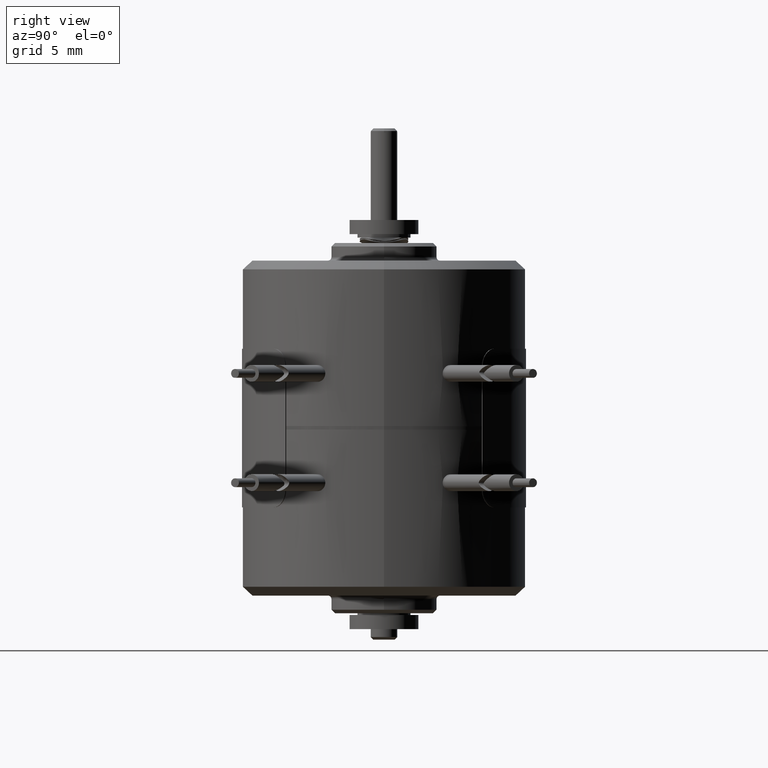
[diagram: clean part render]
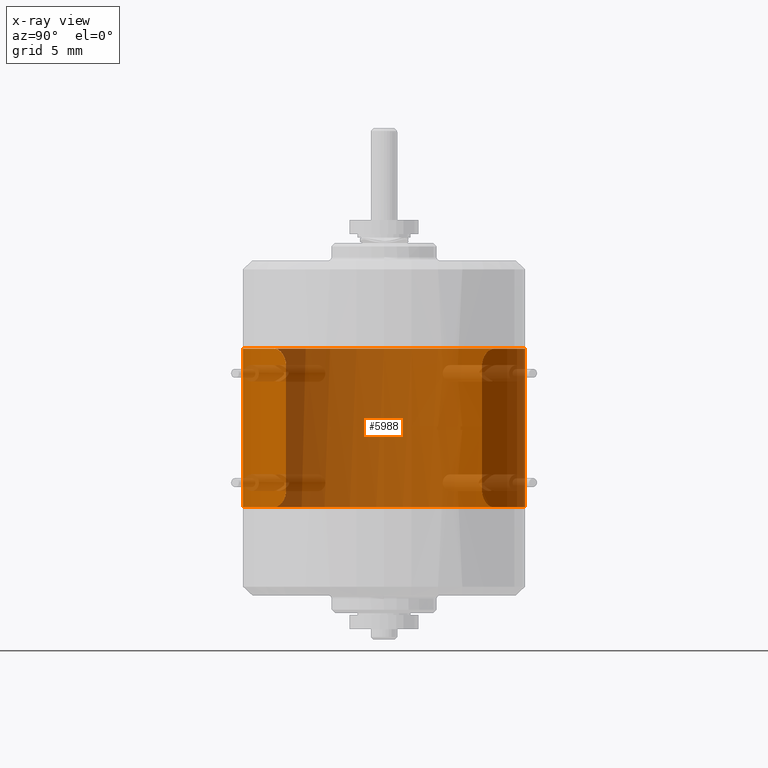
[diagram: x-ray — body ghosted, one internal face saturated and labeled with its STEP entity id]
A machine part, right view, then the same camera in x-ray: the body is ghosted and one INTERNAL B-rep face — a face not visible from any outside direction — is saturated and labeled: STEP entity #5988.
In plain terms, the highlighted cylindrical surface (partial cylindrical patch) has radius 8 mm, axis along (0, 0, 1).
Its self-contained STEP definition (entity closure, byte-faithful):
#5695=CARTESIAN_POINT('',(0.E0,0.E0,-4.5E0));
#5696=DIRECTION('',(0.E0,0.E0,-1.E0));
#5697=DIRECTION('',(-7.783062280959E-1,-6.278848742462E-1,0.E0));
#5698=AXIS2_PLACEMENT_3D('',#5695,#5696,#5697);
#5700=CARTESIAN_POINT('',(0.E0,0.E0,-4.5E0));
#5701=DIRECTION('',(0.E0,0.E0,-1.E0));
#5702=DIRECTION('',(-1.E0,0.E0,0.E0));
#5703=AXIS2_PLACEMENT_3D('',#5700,#5701,#5702);
#5705=CARTESIAN_POINT('',(0.E0,0.E0,-4.5E0));
#5706=DIRECTION('',(0.E0,0.E0,-1.E0));
#5707=DIRECTION('',(7.783062280958E-1,6.278848742463E-1,0.E0));
#5708=AXIS2_PLACEMENT_3D('',#5705,#5706,#5707);
#5710=CARTESIAN_POINT('',(0.E0,0.E0,-4.5E0));
#5711=DIRECTION('',(0.E0,0.E0,-1.E0));
#5712=DIRECTION('',(1.E0,0.E0,0.E0));
#5713=AXIS2_PLACEMENT_3D('',#5710,#5711,#5712);
#5719=CARTESIAN_POINT('',(6.226449824767E0,-5.023078993970E0,4.5E0));
#5720=CARTESIAN_POINT('',(6.180600932907E0,-5.079911829971E0,4.5E0));
#5721=CARTESIAN_POINT('',(6.088688228338E0,-5.190816452932E0,4.485097265188E0));
#5722=CARTESIAN_POINT('',(5.940874346834E0,-5.359185207318E0,4.408669314583E0));
#5723=CARTESIAN_POINT('',(5.811734742522E0,-5.498519115081E0,4.288312083736E0));
#5724=CARTESIAN_POINT('',(5.700778162627E0,-5.613178609905E0,4.128953079162E0));
#5725=CARTESIAN_POINT('',(5.615412659331E0,-5.698273079834E0,3.939240516738E0));
#5726=CARTESIAN_POINT('',(5.560499559242E0,-5.751657914303E0,3.715764850210E0));
#5727=CARTESIAN_POINT('',(5.549729295937E0,-5.761987915800E0,3.572535075101E0));
#5728=CARTESIAN_POINT('',(5.549729295937E0,-5.761987915800E0,3.5E0));
#5730=DIRECTION('',(0.E0,0.E0,-1.E0));
#5731=VECTOR('',#5730,7.E0);
#5732=CARTESIAN_POINT('',(5.549729295937E0,-5.761987915800E0,3.5E0));
#5733=LINE('',#5732,#5731);
#5734=CARTESIAN_POINT('',(5.549729295937E0,-5.761987915800E0,-3.5E0));
#5735=CARTESIAN_POINT('',(5.549729295937E0,-5.761987915800E0,
-3.572872033511E0));
#5736=CARTESIAN_POINT('',(5.560602057826E0,-5.751559842380E0,
-3.716659531194E0));
#5737=CARTESIAN_POINT('',(5.615876444657E0,-5.697819320427E0,
-3.940684011375E0));
#5738=CARTESIAN_POINT('',(5.701619480633E0,-5.612328179765E0,
-4.130470517104E0));
#5739=CARTESIAN_POINT('',(5.812822192186E0,-5.497372503579E0,
-4.289566186937E0));
#5740=CARTESIAN_POINT('',(5.941974092913E0,-5.357963151034E0,
-4.409416547367E0));
#5741=CARTESIAN_POINT('',(6.089417734539E0,-5.189949484033E0,
-4.485283085692E0));
#5742=CARTESIAN_POINT('',(6.180875911813E0,-5.079570974818E0,-4.5E0));
#5743=CARTESIAN_POINT('',(6.226449824767E0,-5.023078993970E0,-4.5E0));
#5745=CARTESIAN_POINT('',(-6.226449824767E0,-5.023078993970E0,-4.5E0));
#5746=CARTESIAN_POINT('',(-6.180600932907E0,-5.079911829971E0,-4.5E0));
#5747=CARTESIAN_POINT('',(-6.088688228339E0,-5.190816452932E0,
-4.485097265188E0));
#5748=CARTESIAN_POINT('',(-5.940874346834E0,-5.359185207318E0,
-4.408669314583E0));
#5749=CARTESIAN_POINT('',(-5.811734742522E0,-5.498519115081E0,
-4.288312083736E0));
#5750=CARTESIAN_POINT('',(-5.700778162627E0,-5.613178609905E0,
-4.128953079162E0));
#5751=CARTESIAN_POINT('',(-5.615412659331E0,-5.698273079834E0,
-3.939240516737E0));
#5752=CARTESIAN_POINT('',(-5.560499559242E0,-5.751657914303E0,
-3.715764850210E0));
#5753=CARTESIAN_POINT('',(-5.549729295937E0,-5.761987915800E0,
-3.572535075101E0));
#5754=CARTESIAN_POINT('',(-5.549729295937E0,-5.761987915800E0,-3.5E0));
#5756=DIRECTION('',(0.E0,0.E0,1.E0));
#5757=VECTOR('',#5756,7.E0);
#5758=CARTESIAN_POINT('',(-5.549729295937E0,-5.761987915800E0,-3.5E0));
#5759=LINE('',#5758,#5757);
#5760=CARTESIAN_POINT('',(-5.549729295937E0,-5.761987915800E0,3.5E0));
#5761=CARTESIAN_POINT('',(-5.549729295937E0,-5.761987915800E0,
3.572872033511E0));
#5762=CARTESIAN_POINT('',(-5.560602057826E0,-5.751559842380E0,
3.716659531194E0));
#5763=CARTESIAN_POINT('',(-5.615876444656E0,-5.697819320427E0,
3.940684011375E0));
#5764=CARTESIAN_POINT('',(-5.701619480633E0,-5.612328179765E0,
4.130470517104E0));
#5765=CARTESIAN_POINT('',(-5.812822192186E0,-5.497372503579E0,
4.289566186937E0));
#5766=CARTESIAN_POINT('',(-5.941974092913E0,-5.357963151034E0,
4.409416547367E0));
#5767=CARTESIAN_POINT('',(-6.089417734539E0,-5.189949484033E0,
4.485283085692E0));
#5768=CARTESIAN_POINT('',(-6.180875911813E0,-5.079570974818E0,4.5E0));
#5769=CARTESIAN_POINT('',(-6.226449824767E0,-5.023078993970E0,4.5E0));
#5831=CARTESIAN_POINT('',(0.E0,0.E0,4.5E0));
#5832=DIRECTION('',(0.E0,0.E0,1.E0));
#5833=DIRECTION('',(7.783062280959E-1,-6.278848742462E-1,0.E0));
#5834=AXIS2_PLACEMENT_3D('',#5831,#5832,#5833);
#5836=CARTESIAN_POINT('',(0.E0,0.E0,4.5E0));
#5837=DIRECTION('',(0.E0,0.E0,1.E0));
#5838=DIRECTION('',(1.E0,0.E0,0.E0));
#5839=AXIS2_PLACEMENT_3D('',#5836,#5837,#5838);
#5841=CARTESIAN_POINT('',(0.E0,0.E0,4.5E0));
#5842=DIRECTION('',(0.E0,0.E0,1.E0));
#5843=DIRECTION('',(-1.E0,0.E0,0.E0));
#5844=AXIS2_PLACEMENT_3D('',#5841,#5842,#5843);
#5873=CARTESIAN_POINT('',(6.226449824767E0,-5.023078993970E0,-4.5E0));
#5875=VERTEX_POINT('',#5873);
#5885=CARTESIAN_POINT('',(-6.226449824767E0,-5.023078993970E0,-4.5E0));
#5886=VERTEX_POINT('',#5885);
#5887=CARTESIAN_POINT('',(-8.E0,0.E0,-4.5E0));
#5888=VERTEX_POINT('',#5887);
#5889=CARTESIAN_POINT('',(6.226449824766E0,5.023078993970E0,-4.5E0));
#5890=VERTEX_POINT('',#5889);
#5891=CARTESIAN_POINT('',(8.E0,0.E0,-4.5E0));
#5892=VERTEX_POINT('',#5891);
#5893=VERTEX_POINT('',#5734);
#5896=VERTEX_POINT('',#5719);
#5897=VERTEX_POINT('',#5728);
#5898=VERTEX_POINT('',#5754);
#5899=CARTESIAN_POINT('',(-5.549729295937E0,-5.761987915800E0,3.5E0));
#5900=VERTEX_POINT('',#5899);
#5901=VERTEX_POINT('',#5769);
#5902=CARTESIAN_POINT('',(-8.E0,0.E0,4.5E0));
#5903=VERTEX_POINT('',#5902);
#5904=CARTESIAN_POINT('',(8.E0,0.E0,4.5E0));
#5905=VERTEX_POINT('',#5904);
#5960=CARTESIAN_POINT('',(0.E0,0.E0,-4.5E0));
#5961=DIRECTION('',(0.E0,0.E0,1.E0));
#5962=DIRECTION('',(1.E0,0.E0,0.E0));
#5963=AXIS2_PLACEMENT_3D('',#5960,#5961,#5962);
#5964=CYLINDRICAL_SURFACE('',#5963,8.E0);
#5966=ORIENTED_EDGE('',*,*,#5965,.T.);
#5968=ORIENTED_EDGE('',*,*,#5967,.T.);
#5969=ORIENTED_EDGE('',*,*,#5950,.T.);
#5970=ORIENTED_EDGE('',*,*,#5940,.F.);
#5971=ORIENTED_EDGE('',*,*,#5938,.F.);
#5972=ORIENTED_EDGE('',*,*,#5936,.F.);
#5973=ORIENTED_EDGE('',*,*,#5934,.F.);
#5975=ORIENTED_EDGE('',*,*,#5974,.T.);
#5977=ORIENTED_EDGE('',*,*,#5976,.T.);
#5979=ORIENTED_EDGE('',*,*,#5978,.T.);
#5981=ORIENTED_EDGE('',*,*,#5980,.F.);
#5983=ORIENTED_EDGE('',*,*,#5982,.F.);
#5985=ORIENTED_EDGE('',*,*,#5984,.F.);
#5986=EDGE_LOOP('',(#5966,#5968,#5969,#5970,#5971,#5972,#5973,#5975,#5977,#5979,
#5981,#5983,#5985));
#5987=FACE_OUTER_BOUND('',#5986,.F.);
#5988=ADVANCED_FACE('',(#5987),#5964,.F.);
#5699=CIRCLE('',#5698,8.E0);
#5704=CIRCLE('',#5703,8.E0);
#5709=CIRCLE('',#5708,8.E0);
#5714=CIRCLE('',#5713,8.E0);
#5729=B_SPLINE_CURVE_WITH_KNOTS('',3,(#5719,#5720,#5721,#5722,#5723,#5724,#5725,
#5726,#5727,#5728),.UNSPECIFIED.,.F.,.F.,(4,1,1,1,1,1,1,4),(0.E0,
1.428571428571E-1,2.857142857143E-1,4.285714285714E-1,5.714285714286E-1,
7.142857142857E-1,8.571428571429E-1,1.E0),.UNSPECIFIED.);
#5744=B_SPLINE_CURVE_WITH_KNOTS('',3,(#5734,#5735,#5736,#5737,#5738,#5739,#5740,
#5741,#5742,#5743),.UNSPECIFIED.,.F.,.F.,(4,1,1,1,1,1,1,4),(0.E0,
1.428571428571E-1,2.857142857143E-1,4.285714285714E-1,5.714285714286E-1,
7.142857142857E-1,8.571428571429E-1,1.E0),.UNSPECIFIED.);
#5755=B_SPLINE_CURVE_WITH_KNOTS('',3,(#5745,#5746,#5747,#5748,#5749,#5750,#5751,
#5752,#5753,#5754),.UNSPECIFIED.,.F.,.F.,(4,1,1,1,1,1,1,4),(0.E0,
1.428571428571E-1,2.857142857143E-1,4.285714285714E-1,5.714285714286E-1,
7.142857142857E-1,8.571428571429E-1,1.E0),.UNSPECIFIED.);
#5770=B_SPLINE_CURVE_WITH_KNOTS('',3,(#5760,#5761,#5762,#5763,#5764,#5765,#5766,
#5767,#5768,#5769),.UNSPECIFIED.,.F.,.F.,(4,1,1,1,1,1,1,4),(0.E0,
1.428571428571E-1,2.857142857143E-1,4.285714285714E-1,5.714285714286E-1,
7.142857142857E-1,8.571428571429E-1,1.E0),.UNSPECIFIED.);
#5835=CIRCLE('',#5834,8.E0);
#5840=CIRCLE('',#5839,8.E0);
#5845=CIRCLE('',#5844,8.E0);
#5934=EDGE_CURVE('',#5886,#5888,#5699,.T.);
#5936=EDGE_CURVE('',#5888,#5890,#5704,.T.);
#5938=EDGE_CURVE('',#5890,#5892,#5709,.T.);
#5940=EDGE_CURVE('',#5892,#5875,#5714,.T.);
#5950=EDGE_CURVE('',#5893,#5875,#5744,.T.);
#5965=EDGE_CURVE('',#5896,#5897,#5729,.T.);
#5967=EDGE_CURVE('',#5897,#5893,#5733,.T.);
#5974=EDGE_CURVE('',#5886,#5898,#5755,.T.);
#5976=EDGE_CURVE('',#5898,#5900,#5759,.T.);
#5978=EDGE_CURVE('',#5900,#5901,#5770,.T.);
#5980=EDGE_CURVE('',#5903,#5901,#5845,.T.);
#5982=EDGE_CURVE('',#5905,#5903,#5840,.T.);
#5984=EDGE_CURVE('',#5896,#5905,#5835,.T.);